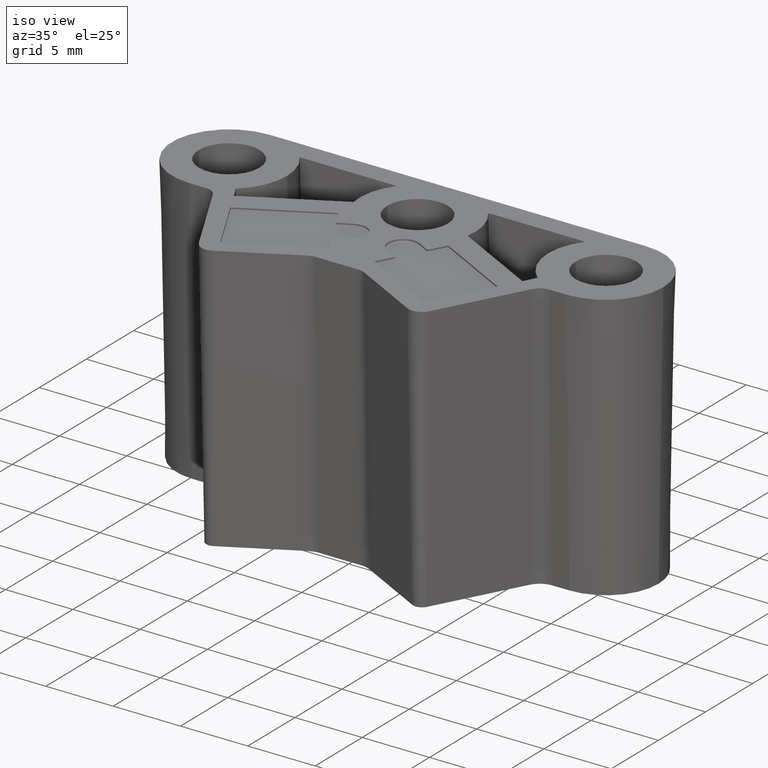
[diagram: clean part render]
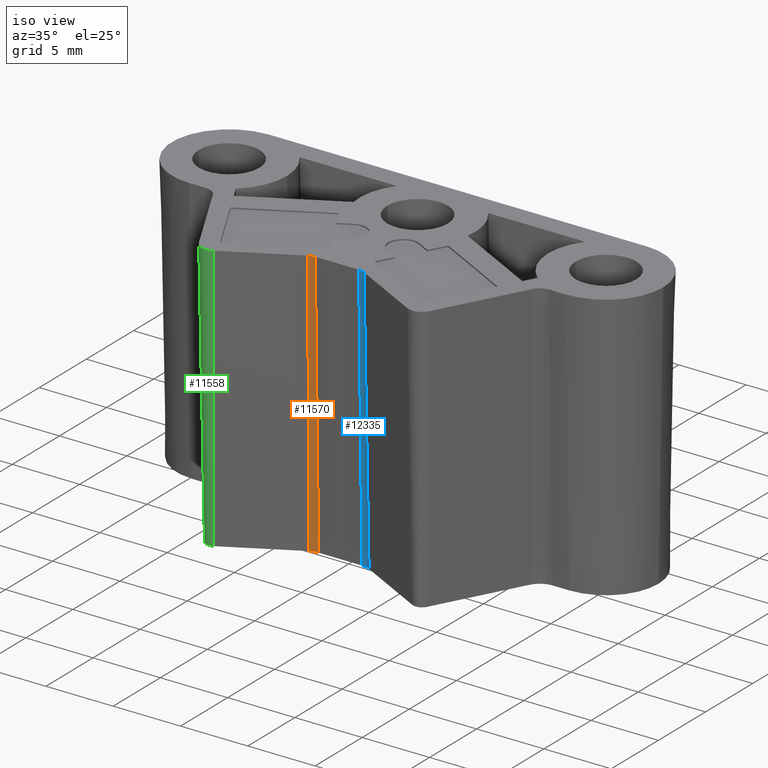
[diagram: same view with three faces highlighted in distinct colors, each labeled with its STEP entity id]
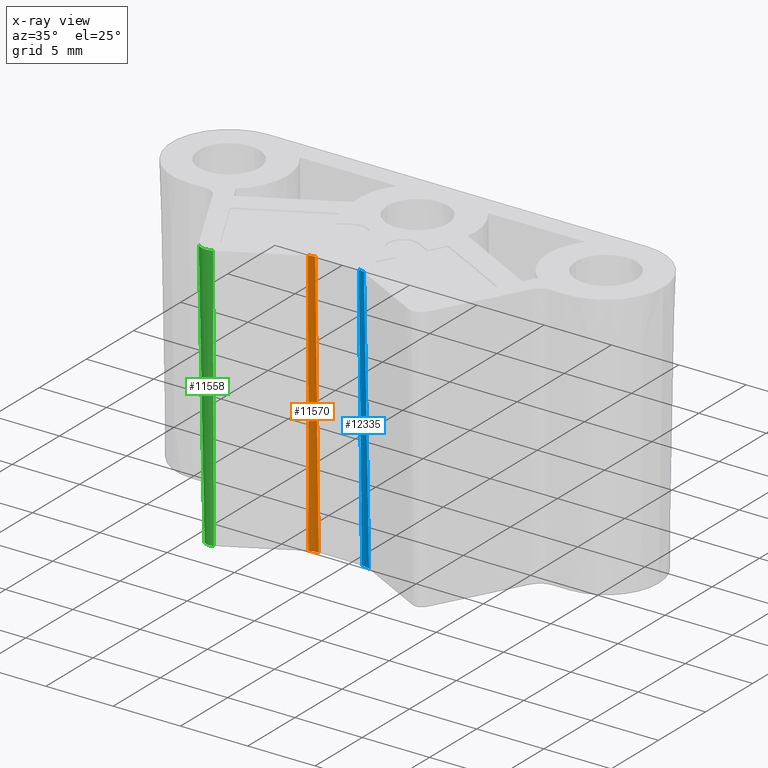
[diagram: x-ray of the same camera — body ghosted, the three highlighted faces saturated]
A machine part, iso view with three faces highlighted in distinct colors.
The next image is the same camera in x-ray (body ghosted, the three faces saturated) — at least one of them is partly hidden behind the body in this view.
Their STEP definitions:

[orange] entity #11570 — the highlighted conical surface has half-angle 1 deg.
#1659 = CARTESIAN_POINT ( 'NONE',  ( -2.246148546799703100, 23.94118574409023700, 0.0000000000000000000 ) ) ;
#1660 = DIRECTION ( 'NONE',  ( 1.000000000000000000, 0.0000000000000000000, 5.916456789157589400E-031 ) ) ;
#1661 = DIRECTION ( 'NONE',  ( 5.916456789157588500E-031, 5.146084811402694200E-031, 1.000000000000000000 ) ) ;
#1662 = AXIS2_PLACEMENT_3D ( 'NONE', #1668, #1661, #1660 ) ;
#1663 = CIRCLE ( 'NONE', #1662, 1.349101298564352700 ) ;
#1668 = CARTESIAN_POINT ( 'NONE',  ( -1.612783851806222700, 22.74999999999999300, 0.0000000000000000000 ) ) ;
#1696 = CARTESIAN_POINT ( 'NONE',  ( -2.082255414592114800, 23.63294759285891500, 20.00000000000001800 ) ) ;
#1697 = DIRECTION ( 'NONE',  ( 1.000000000000000000, -2.081668171172168500E-014, 0.0000000000000000000 ) ) ;
#1698 = DIRECTION ( 'NONE',  ( -5.916456789157588500E-031, -5.146084811402694200E-031, -1.000000000000000000 ) ) ;
#1699 = CARTESIAN_POINT ( 'NONE',  ( -1.612783851806222700, 22.74999999999999300, 20.00000000000001800 ) ) ;
#1700 = AXIS2_PLACEMENT_3D ( 'NONE', #1699, #1698, #1697 ) ;
#1701 = CIRCLE ( 'NONE', #1700, 1.000000000000000000 ) ;
#1724 = CARTESIAN_POINT ( 'NONE',  ( -1.612783851806221400, 24.09910129856435300, 0.0000000000000000000 ) ) ;
#2120 = CARTESIAN_POINT ( 'NONE',  ( -1.612783851806221900, 23.74999999999999300, 20.00000000000001800 ) ) ;
#4528 = DIRECTION ( 'NONE',  ( 0.008193408524486066700, -0.01540956025339514300, 0.9998476951563911600 ) ) ;
#4529 = VECTOR ( 'NONE', #4528, 1000.000000000000200 ) ;
#4530 = CARTESIAN_POINT ( 'NONE',  ( -2.082255414592112200, 23.63294759285891500, 20.00000000000001800 ) ) ;
#4532 = LINE ( 'NONE', #4530, #4529 ) ;
#4533 = DIRECTION ( 'NONE',  ( 1.625847506606608600E-017, 0.01745240643728355000, -0.9998476951563911600 ) ) ;
#4534 = VECTOR ( 'NONE', #4533, 1000.000000000000200 ) ;
#4535 = CARTESIAN_POINT ( 'NONE',  ( -1.612783851806221900, 23.74999999999999300, 20.00000000000001800 ) ) ;
#4536 = LINE ( 'NONE', #4535, #4534 ) ;
#11182 = EDGE_CURVE ( 'NONE', #13448, #13268, #4536, .T. ) ;
#11185 = EDGE_CURVE ( 'NONE', #13251, #13283, #4532, .T. ) ;
#11202 = ORIENTED_EDGE ( 'NONE', *, *, #11182, .F. ) ;
#11570 = ADVANCED_FACE ( 'NONE', ( #13657 ), #13660, .F. ) ;
#11571 = EDGE_LOOP ( 'NONE', ( #11572, #11573, #11574, #11202 ) ) ;
#11572 = ORIENTED_EDGE ( 'NONE', *, *, #13282, .F. ) ;
#11573 = ORIENTED_EDGE ( 'NONE', *, *, #11185, .F. ) ;
#11574 = ORIENTED_EDGE ( 'NONE', *, *, #13250, .F. ) ;
#13250 = EDGE_CURVE ( 'NONE', #13268, #13251, #1663, .T. ) ;
#13251 = VERTEX_POINT ( 'NONE', #1659 ) ;
#13268 = VERTEX_POINT ( 'NONE', #1724 ) ;
#13282 = EDGE_CURVE ( 'NONE', #13283, #13448, #1701, .T. ) ;
#13283 = VERTEX_POINT ( 'NONE', #1696 ) ;
#13448 = VERTEX_POINT ( 'NONE', #2120 ) ;
#13657 = FACE_OUTER_BOUND ( 'NONE', #11571, .T. ) ;
#13659 = CARTESIAN_POINT ( 'NONE',  ( -1.612783851806222700, 22.74999999999999300, 20.00000000000001800 ) ) ;
#13660 = CONICAL_SURFACE ( 'NONE', #13684, 1.000000000000000000, 0.01745329251994333400 ) ;
#13670 = DIRECTION ( 'NONE',  ( 1.000000000000000000, 0.0000000000000000000, 0.0000000000000000000 ) ) ;
#13674 = DIRECTION ( 'NONE',  ( -5.916456789157588500E-031, -5.146084811402694200E-031, -1.000000000000000000 ) ) ;
#13684 = AXIS2_PLACEMENT_3D ( 'NONE', #13659, #13674, #13670 ) ;

[blue] entity #12335 — the highlighted conical surface has half-angle 1 deg.
#1712 = CARTESIAN_POINT ( 'NONE',  ( 1.612783851806234500, 24.09910129856435300, 0.0000000000000000000 ) ) ;
#1713 = DIRECTION ( 'NONE',  ( 1.000000000000000000, 0.0000000000000000000, 5.916456789157589400E-031 ) ) ;
#1714 = DIRECTION ( 'NONE',  ( 5.916456789157588500E-031, 5.146084811402694200E-031, 1.000000000000000000 ) ) ;
#1715 = CARTESIAN_POINT ( 'NONE',  ( 1.612783851806234500, 22.74999999999999300, 0.0000000000000000000 ) ) ;
#1716 = AXIS2_PLACEMENT_3D ( 'NONE', #1715, #1714, #1713 ) ;
#1717 = CIRCLE ( 'NONE', #1716, 1.349101298564352700 ) ;
#1734 = CARTESIAN_POINT ( 'NONE',  ( 2.246148546799716900, 23.94118574409023700, 0.0000000000000000000 ) ) ;
#2118 = CIRCLE ( 'NONE', #2179, 1.000000000000000000 ) ;
#2119 = CARTESIAN_POINT ( 'NONE',  ( 1.612783851806235000, 23.74999999999999300, 20.00000000000001800 ) ) ;
#2175 = CARTESIAN_POINT ( 'NONE',  ( 2.082255414592126800, 23.63294759285891500, 20.00000000000001800 ) ) ;
#2176 = DIRECTION ( 'NONE',  ( 1.000000000000000000, -2.775557561562891400E-014, 0.0000000000000000000 ) ) ;
#2177 = DIRECTION ( 'NONE',  ( -5.916456789157588500E-031, -5.146084811402694200E-031, -1.000000000000000000 ) ) ;
#2178 = CARTESIAN_POINT ( 'NONE',  ( 1.612783851806234500, 22.74999999999999300, 20.00000000000001800 ) ) ;
#2179 = AXIS2_PLACEMENT_3D ( 'NONE', #2178, #2177, #2176 ) ;
#4591 = DIRECTION ( 'NONE',  ( -1.625847506606608600E-017, -0.01745240643728355000, 0.9998476951563911600 ) ) ;
#4592 = VECTOR ( 'NONE', #4591, 1000.000000000000200 ) ;
#4593 = CARTESIAN_POINT ( 'NONE',  ( 1.612783851806235000, 23.74999999999999300, 20.00000000000001800 ) ) ;
#4594 = LINE ( 'NONE', #4593, #4592 ) ;
#4613 = DIRECTION ( 'NONE',  ( 0.008193408524486073600, 0.01540956025339513600, -0.9998476951563911600 ) ) ;
#4614 = VECTOR ( 'NONE', #4613, 1000.000000000000200 ) ;
#4615 = CARTESIAN_POINT ( 'NONE',  ( 2.082255414592125900, 23.63294759285891500, 20.00000000000001800 ) ) ;
#4616 = LINE ( 'NONE', #4615, #4614 ) ;
#7200 = FACE_OUTER_BOUND ( 'NONE', #12336, .T. ) ;
#7249 = DIRECTION ( 'NONE',  ( 1.000000000000000000, 0.0000000000000000000, 0.0000000000000000000 ) ) ;
#7250 = DIRECTION ( 'NONE',  ( -5.916456789157588500E-031, -5.146084811402694200E-031, -1.000000000000000000 ) ) ;
#7251 = AXIS2_PLACEMENT_3D ( 'NONE', #7253, #7250, #7249 ) ;
#7252 = CONICAL_SURFACE ( 'NONE', #7251, 1.000000000000000000, 0.01745329251994333400 ) ;
#7253 = CARTESIAN_POINT ( 'NONE',  ( 1.612783851806234500, 22.74999999999999300, 20.00000000000001800 ) ) ;
#11154 = EDGE_CURVE ( 'NONE', #13454, #13300, #4616, .T. ) ;
#11172 = EDGE_CURVE ( 'NONE', #13275, #13449, #4594, .T. ) ;
#12335 = ADVANCED_FACE ( 'NONE', ( #7200 ), #7252, .F. ) ;
#12336 = EDGE_LOOP ( 'NONE', ( #12440, #12441, #12540, #12522 ) ) ;
#12440 = ORIENTED_EDGE ( 'NONE', *, *, #13453, .F. ) ;
#12441 = ORIENTED_EDGE ( 'NONE', *, *, #11172, .F. ) ;
#12522 = ORIENTED_EDGE ( 'NONE', *, *, #11154, .F. ) ;
#12540 = ORIENTED_EDGE ( 'NONE', *, *, #13274, .F. ) ;
#13274 = EDGE_CURVE ( 'NONE', #13300, #13275, #1717, .T. ) ;
#13275 = VERTEX_POINT ( 'NONE', #1712 ) ;
#13300 = VERTEX_POINT ( 'NONE', #1734 ) ;
#13449 = VERTEX_POINT ( 'NONE', #2119 ) ;
#13453 = EDGE_CURVE ( 'NONE', #13449, #13454, #2118, .T. ) ;
#13454 = VERTEX_POINT ( 'NONE', #2175 ) ;

[green] entity #11558 — the highlighted conical surface has half-angle 1 deg.
#1648 = DIRECTION ( 'NONE',  ( 1.000000000000000000, 0.0000000000000000000, 5.916456789157590300E-031 ) ) ;
#1649 = DIRECTION ( 'NONE',  ( -5.916456789157588500E-031, -5.146084811402694200E-031, -1.000000000000000000 ) ) ;
#1650 = CARTESIAN_POINT ( 'NONE',  ( -7.685538337036693000, 21.78619926541647100, 0.0000000000000000000 ) ) ;
#1651 = AXIS2_PLACEMENT_3D ( 'NONE', #1650, #1649, #1648 ) ;
#1652 = CIRCLE ( 'NONE', #1651, 0.6508987014356478800 ) ;
#1654 = CARTESIAN_POINT ( 'NONE',  ( -7.379959906458394100, 21.21148982378887000, 0.0000000000000000000 ) ) ;
#1723 = CARTESIAN_POINT ( 'NONE',  ( -8.260247778664298900, 21.48062083483817700, 0.0000000000000000000 ) ) ;
#2153 = DIRECTION ( 'NONE',  ( 1.000000000000000000, 0.0000000000000000000, 0.0000000000000000000 ) ) ;
#2154 = DIRECTION ( 'NONE',  ( 5.916456789157588500E-031, 5.146084811402694200E-031, 1.000000000000000000 ) ) ;
#2155 = CARTESIAN_POINT ( 'NONE',  ( -7.685538337036690300, 21.78619926541647100, 20.00000000000001800 ) ) ;
#2156 = AXIS2_PLACEMENT_3D ( 'NONE', #2155, #2154, #2153 ) ;
#2157 = CIRCLE ( 'NONE', #2156, 1.000000000000000000 ) ;
#2158 = CARTESIAN_POINT ( 'NONE',  ( -8.568485929895615500, 21.31672770263057300, 20.00000000000001800 ) ) ;
#4377 = CARTESIAN_POINT ( 'NONE',  ( -7.216066774250800900, 20.90325167255754800, 20.00000000000001800 ) ) ;
#4541 = DIRECTION ( 'NONE',  ( -0.008193408524486066700, 0.01540956025339514300, -0.9998476951563911600 ) ) ;
#4542 = VECTOR ( 'NONE', #4541, 1000.000000000000200 ) ;
#4543 = CARTESIAN_POINT ( 'NONE',  ( -7.216066774250800900, 20.90325167255754800, 20.00000000000001800 ) ) ;
#4544 = LINE ( 'NONE', #4543, #4542 ) ;
#4581 = DIRECTION ( 'NONE',  ( -0.01540956025339514400, -0.008193408524486061500, 0.9998476951563911600 ) ) ;
#4582 = VECTOR ( 'NONE', #4581, 1000.000000000000200 ) ;
#4583 = CARTESIAN_POINT ( 'NONE',  ( -8.568485929895615500, 21.31672770263057300, 20.00000000000001800 ) ) ;
#4584 = LINE ( 'NONE', #4583, #4582 ) ;
#9954 = VERTEX_POINT ( 'NONE', #4377 ) ;
#11159 = EDGE_CURVE ( 'NONE', #13269, #13463, #4584, .T. ) ;
#11175 = EDGE_CURVE ( 'NONE', #9954, #13254, #4544, .T. ) ;
#11558 = ADVANCED_FACE ( 'NONE', ( #13960 ), #13604, .T. ) ;
#11559 = EDGE_LOOP ( 'NONE', ( #11560, #11561, #11562, #11563 ) ) ;
#11560 = ORIENTED_EDGE ( 'NONE', *, *, #13465, .F. ) ;
#11561 = ORIENTED_EDGE ( 'NONE', *, *, #11159, .F. ) ;
#11562 = ORIENTED_EDGE ( 'NONE', *, *, #13256, .F. ) ;
#11563 = ORIENTED_EDGE ( 'NONE', *, *, #11175, .F. ) ;
#13254 = VERTEX_POINT ( 'NONE', #1654 ) ;
#13256 = EDGE_CURVE ( 'NONE', #13254, #13269, #1652, .T. ) ;
#13269 = VERTEX_POINT ( 'NONE', #1723 ) ;
#13463 = VERTEX_POINT ( 'NONE', #2158 ) ;
#13465 = EDGE_CURVE ( 'NONE', #13463, #9954, #2157, .T. ) ;
#13603 = CARTESIAN_POINT ( 'NONE',  ( -7.685538337036690300, 21.78619926541647100, 20.00000000000001800 ) ) ;
#13604 = CONICAL_SURFACE ( 'NONE', #13612, 1.000000000000000000, 0.01745329251994333400 ) ;
#13611 = DIRECTION ( 'NONE',  ( 1.000000000000000000, 0.0000000000000000000, 0.0000000000000000000 ) ) ;
#13612 = AXIS2_PLACEMENT_3D ( 'NONE', #13603, #13621, #13611 ) ;
#13621 = DIRECTION ( 'NONE',  ( 5.916456789157588500E-031, 5.146084811402694200E-031, 1.000000000000000000 ) ) ;
#13960 = FACE_OUTER_BOUND ( 'NONE', #11559, .T. ) ;